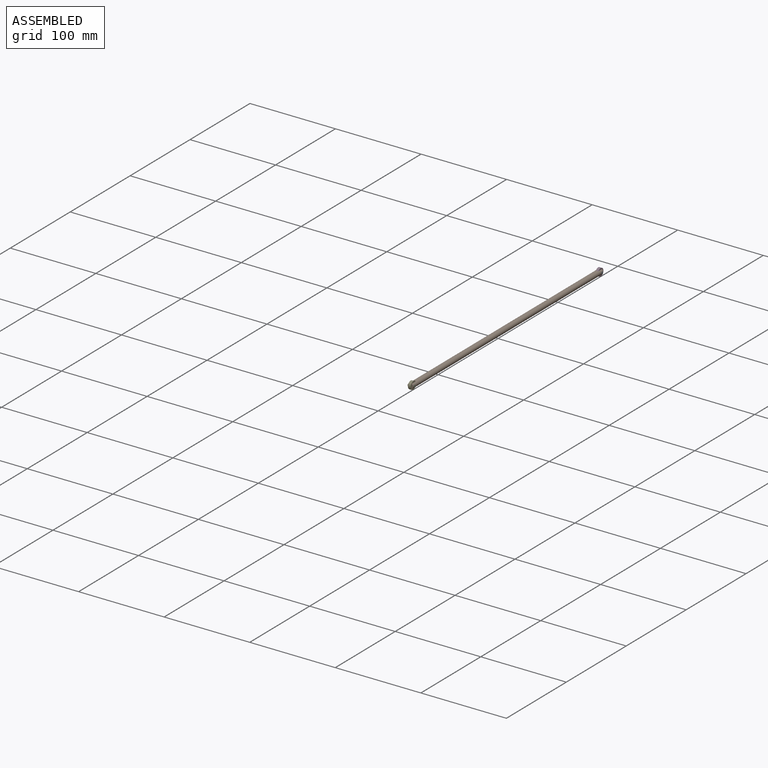
[diagram: assembled view]
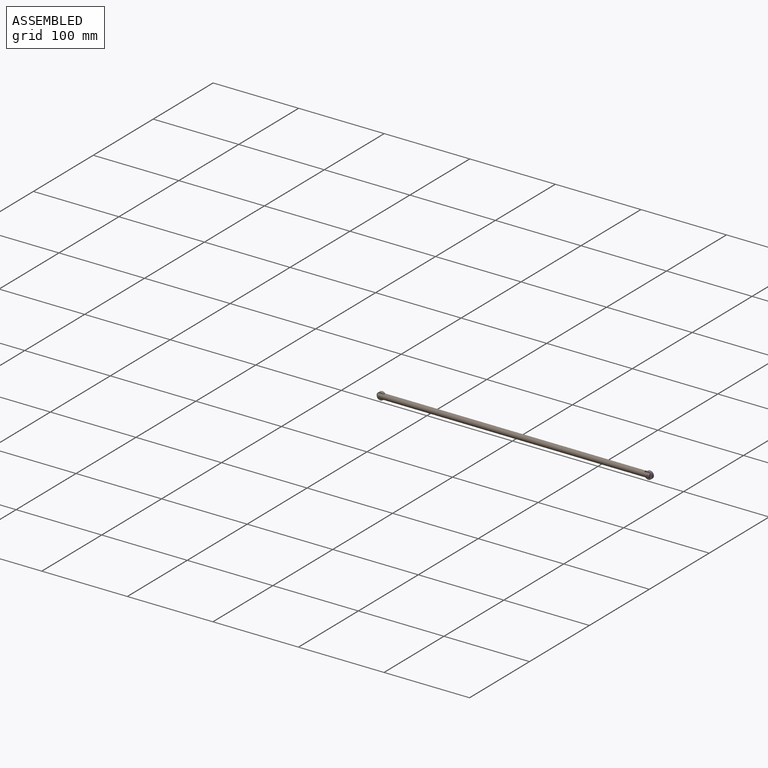
[diagram: assembled view, second angle]
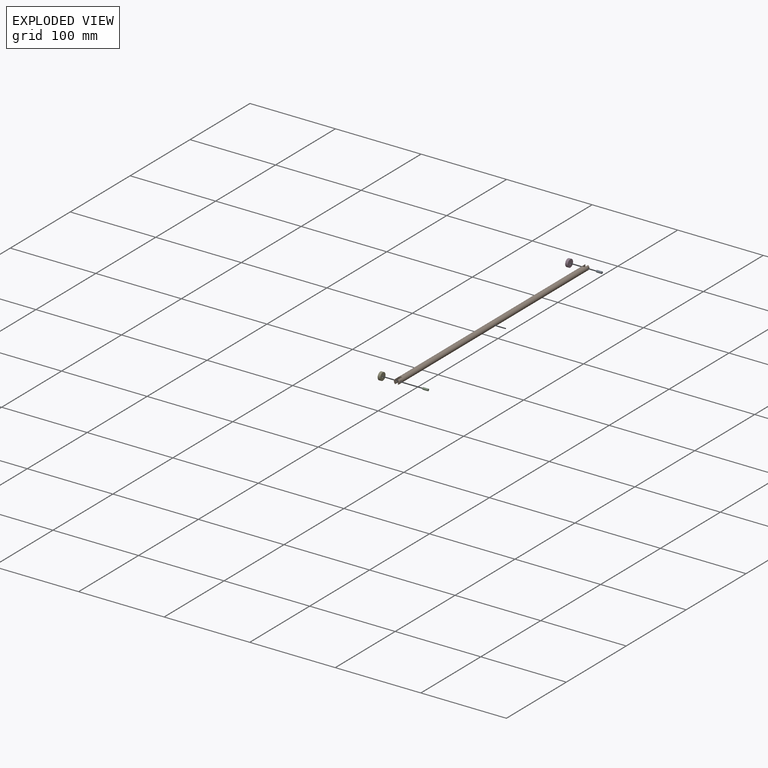
[diagram: exploded view]
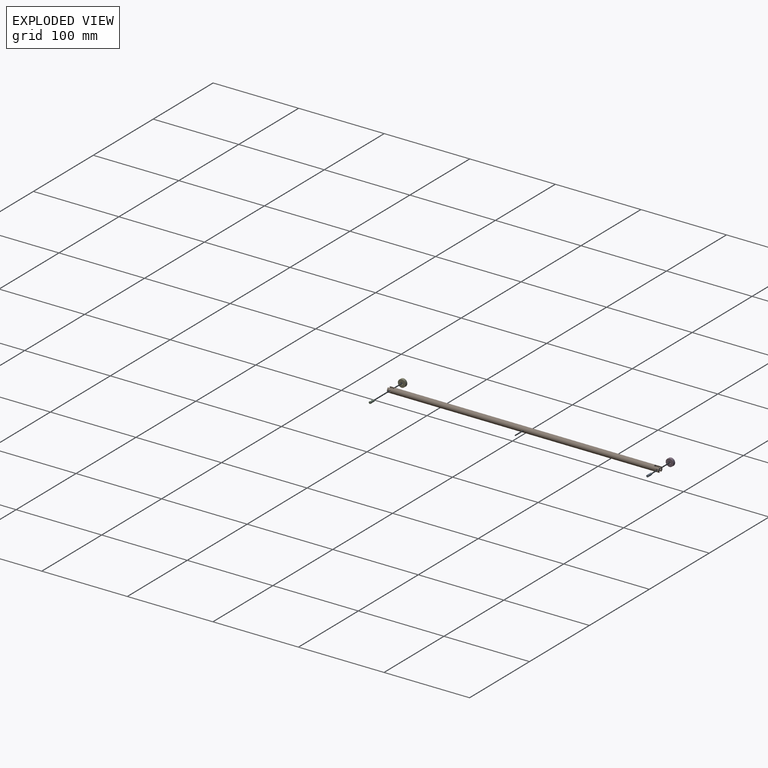
[diagram: exploded view, second angle]
ASSEMBLY  parts=5 mates=4
PART A: 3 faces, bbox 2.5x6.4x2.5 mm
  f0: cylinder r=1.27mm len=6.35mm, axis (0,1,0), area 50.7mm2, adj f1,f2
  f1: plane 2.54x2.54mm, normal (0,-1,0), area 5.1mm2, adj f0
  f2: plane 2.54x2.54mm, normal (0,1,0), area 5.1mm2, adj f0
PART B: 15 faces, bbox 6.4x317.5x6.4 mm
  f0: plane 5.5x1.59mm, normal (0,-1,0), area 6.2mm2, adj f2,f12
  f1: plane 5.5x1.59mm, normal (0,1,0), area 6.2mm2, adj f2,f6
  f2: cylinder r=3.17mm len=317.5mm, axis (0,1,0), area 6224mm2, adj f0,f1,f3,f4,f5,f6,f7,f8
  f3: plane 5.5x1.59mm, normal (0,1,0), area 6.2mm2, adj f2,f5
  f4: plane 6.35x3.18mm, normal (0,1,0), area 19.3mm2, adj f2,f5,f6
  f5: plane 6.54x5.5mm, normal (-1,0,0), area 30.9mm2, adj f2,f3,f4,f8
  f6: plane 6.54x5.5mm, normal (1,0,0), area 30.9mm2, adj f1,f2,f4,f7
  f7: cylinder r=1.27mm len=2.54mm, axis (1,0,0), area 11.6mm2, adj f2,f6
  f8: cylinder r=1.27mm len=2.54mm, axis (1,0,0), area 11.6mm2, adj f2,f5
  f9: plane 5.5x1.59mm, normal (0,-1,0), area 6.2mm2, adj f2,f11
  f10: plane 6.35x3.18mm, normal (0,-1,0), area 19.3mm2, adj f2,f11,f12
  f11: plane 6.87x5.5mm, normal (-1,0,0), area 32.7mm2, adj f2,f9,f10,f14
  f12: plane 6.87x5.5mm, normal (1,0,0), area 32.7mm2, adj f0,f2,f10,f13
  f13: cylinder r=1.27mm len=2.54mm, axis (1,0,0), area 11.6mm2, adj f2,f12
  f14: cylinder r=1.27mm len=2.54mm, axis (1,0,0), area 11.6mm2, adj f2,f11
PART C: same geometry as A
PART D: 4 faces, bbox 8.9x3x8.9 mm
  f0: cylinder r=4.45mm len=8.89mm, axis (0,1,0), area 85.1mm2, adj f1,f2
  f1: plane 8.89x8.89mm, normal (0,-1,0), area 57mm2, adj f0,f3
  f2: plane 8.89x8.89mm, normal (0,1,0), area 57mm2, adj f0,f3
  f3: cylinder r=1.27mm len=3.05mm, axis (0,-1,0), area 24.3mm2, adj f1,f2
PART E: same geometry as D
PLACE A rot(axis=(-0.58,0.58,0.58),120deg) t=(-98.71,62.99,-48.52)mm
PLACE B t=(-95.54,64.89,-48.52)mm
PLACE C rot(axis=(-0.58,0.58,0.58),120deg) t=(-98.71,-250.05,-48.52)mm
PLACE D rot(axis=(0,0,-1),90deg) t=(-94.01,62.99,-48.52)mm
PLACE E rot(axis=(0,0,-1),90deg) t=(-94.01,-250.05,-48.52)mm
MATE revolute D.f0 <-> A.f0  axis (-1,0,0) through (-95.53,62.99,-48.52)mm
MATE revolute E.f0 <-> C.f0  axis (-1,0,0) through (-95.53,-250.05,-48.52)mm
MATE fastened A.f0 <-> B.f7  axis (1,0,0) through (-92.36,62.99,-48.52)mm
MATE fastened C.f0 <-> B.f13  axis (1,0,0) through (-92.36,-250.05,-48.52)mm
